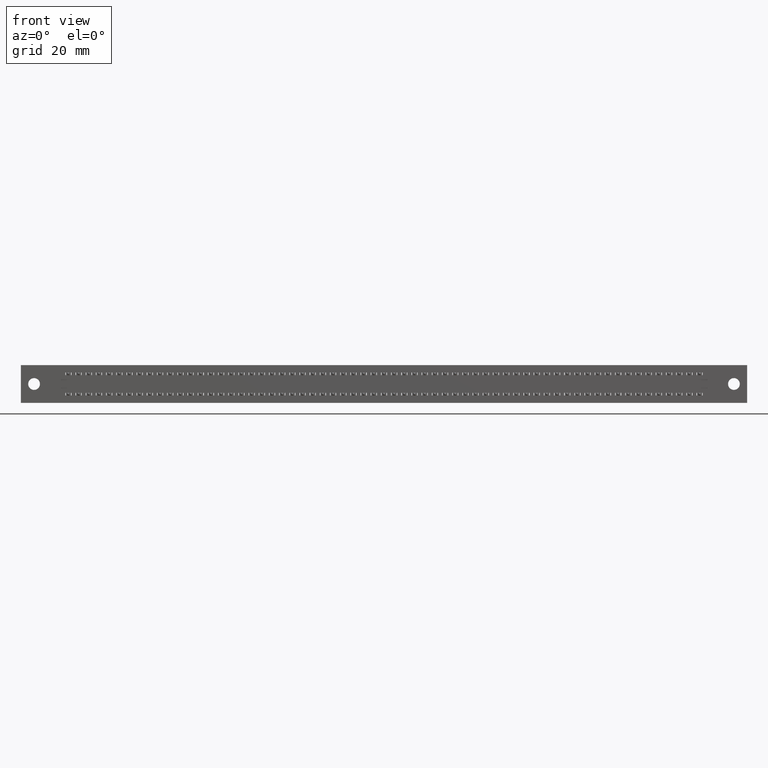
[diagram: clean part render]
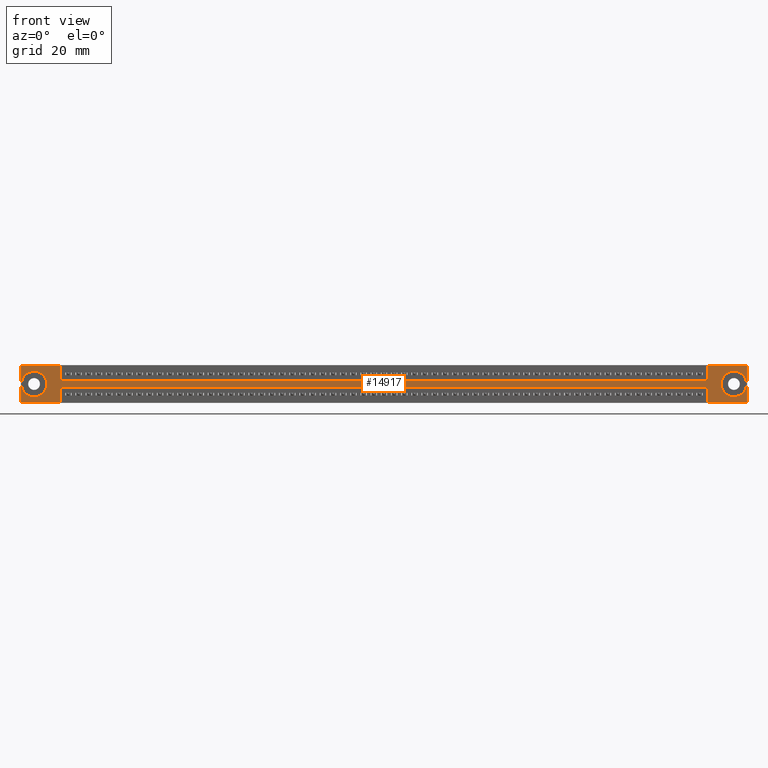
[diagram: same view with one face highlighted and labeled with its STEP entity id]
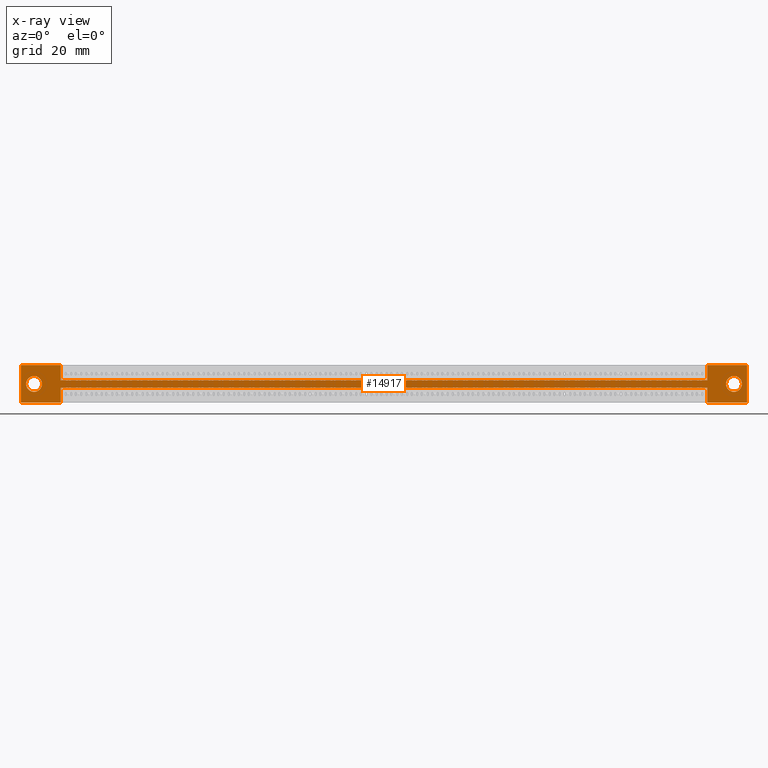
[diagram: x-ray of the same camera — body ghosted, the highlighted face saturated]
A machine part, front view. The second image highlights one B-rep face of the part: STEP entity #14917.
The next image is the same camera in x-ray: the body ghosted, the highlighted face saturated — about 0% of this face is hidden behind the body in this view.
In plain terms, the highlighted planar face has unit normal (0, -1, 0).
Its self-contained STEP definition (entity closure, byte-faithful):
#2244 = VECTOR ( 'NONE', #14319, 39.37007874015748100 ) ;
#2463 = DIRECTION ( 'NONE',  ( -1.000000000000000000, -0.0000000000000000000, -1.914399434943422000E-017 ) ) ;
#3635 = VECTOR ( 'NONE', #6135, 39.37007874015748100 ) ;
#3737 = DIRECTION ( 'NONE',  ( 0.0000000000000000000, 0.0000000000000000000, 1.000000000000000000 ) ) ;
#3769 = LINE ( 'NONE', #44026, #35302 ) ;
#3930 = FACE_BOUND ( 'NONE', #22617, .T. ) ;
#4119 = VECTOR ( 'NONE', #38405, 39.37007874015748100 ) ;
#4283 = VECTOR ( 'NONE', #37659, 39.37007874015748100 ) ;
#4478 = CARTESIAN_POINT ( 'NONE',  ( 7.004999999999999900, 0.0000000000000000000, -0.1850000000000000000 ) ) ;
#5934 = DIRECTION ( 'NONE',  ( 0.0000000000000000000, 1.000000000000000000, -0.0000000000000000000 ) ) ;
#5935 = VECTOR ( 'NONE', #36309, 39.37007874015748100 ) ;
#6135 = DIRECTION ( 'NONE',  ( -1.000000000000000000, -0.0000000000000000000, -1.914399434943422000E-017 ) ) ;
#6345 = CARTESIAN_POINT ( 'NONE',  ( 0.3924999999999996800, 0.0000000000000000000, -0.3700000000000000000 ) ) ;
#6457 = CARTESIAN_POINT ( 'NONE',  ( 6.742500000000000600, 0.0000000000000000000, -0.3700000000000000000 ) ) ;
#7029 = EDGE_LOOP ( 'NONE', ( #45430, #41431, #11964, #40698, #39459, #11622, #12070, #23414, #9784, #25214, #37932, #8560 ) ) ;
#7317 = VECTOR ( 'NONE', #29481, 39.37007874015748100 ) ;
#7786 = DIRECTION ( 'NONE',  ( 0.0000000000000000000, -1.000000000000000000, 0.0000000000000000000 ) ) ;
#8100 = EDGE_CURVE ( 'NONE', #22500, #34528, #23407, .T. ) ;
#8204 = CARTESIAN_POINT ( 'NONE',  ( 6.742500000000000600, 0.0000000000000000000, -0.2200000000000000000 ) ) ;
#8560 = ORIENTED_EDGE ( 'NONE', *, *, #17118, .F. ) ;
#8579 = CIRCLE ( 'NONE', #28438, 0.07800000000000002800 ) ;
#8622 = VECTOR ( 'NONE', #29839, 39.37007874015748100 ) ;
#8904 = AXIS2_PLACEMENT_3D ( 'NONE', #40874, #7786, #26154 ) ;
#9146 = DIRECTION ( 'NONE',  ( 0.0000000000000000000, 0.0000000000000000000, -1.000000000000000000 ) ) ;
#9422 = CARTESIAN_POINT ( 'NONE',  ( 0.0000000000000000000, 0.0000000000000000000, 0.0000000000000000000 ) ) ;
#9644 = DIRECTION ( 'NONE',  ( 0.0000000000000000000, 0.0000000000000000000, -1.000000000000000000 ) ) ;
#9784 = ORIENTED_EDGE ( 'NONE', *, *, #36054, .F. ) ;
#10196 = VECTOR ( 'NONE', #19902, 39.37007874015748100 ) ;
#10742 = LINE ( 'NONE', #25807, #7317 ) ;
#10849 = VERTEX_POINT ( 'NONE', #33978 ) ;
#10946 = EDGE_CURVE ( 'NONE', #41189, #11360, #28234, .T. ) ;
#10986 = EDGE_LOOP ( 'NONE', ( #30330, #25840 ) ) ;
#11260 = VERTEX_POINT ( 'NONE', #8204 ) ;
#11264 = CARTESIAN_POINT ( 'NONE',  ( 0.1299999999999994200, 0.0000000000000000000, -0.1069999999999999600 ) ) ;
#11360 = VERTEX_POINT ( 'NONE', #34725 ) ;
#11430 = CARTESIAN_POINT ( 'NONE',  ( 0.1299999999999994200, 0.0000000000000000000, -0.1850000000000000800 ) ) ;
#11452 = PLANE ( 'NONE',  #8904 ) ;
#11622 = ORIENTED_EDGE ( 'NONE', *, *, #19392, .F. ) ;
#11964 = ORIENTED_EDGE ( 'NONE', *, *, #13228, .F. ) ;
#11988 = AXIS2_PLACEMENT_3D ( 'NONE', #11430, #18448, #3737 ) ;
#12070 = ORIENTED_EDGE ( 'NONE', *, *, #36787, .F. ) ;
#12912 = EDGE_CURVE ( 'NONE', #10849, #44563, #37233, .T. ) ;
#13228 = EDGE_CURVE ( 'NONE', #31046, #11260, #39463, .T. ) ;
#13388 = CIRCLE ( 'NONE', #24889, 0.07800000000000011100 ) ;
#13883 = EDGE_CURVE ( 'NONE', #11360, #41189, #8579, .T. ) ;
#13921 = CARTESIAN_POINT ( 'NONE',  ( 0.3924999999999996800, 0.0000000000000000000, 0.0000000000000000000 ) ) ;
#14319 = DIRECTION ( 'NONE',  ( 1.000000000000000000, 0.0000000000000000000, 0.0000000000000000000 ) ) ;
#14917 = ADVANCED_FACE ( 'NONE', ( #45684, #3930, #39440 ), #11452, .T. ) ;
#15575 = EDGE_CURVE ( 'NONE', #11260, #32003, #10742, .T. ) ;
#15699 = CARTESIAN_POINT ( 'NONE',  ( 0.3924999999999996800, 0.0000000000000000000, 0.0000000000000000000 ) ) ;
#15834 = DIRECTION ( 'NONE',  ( 0.0000000000000000000, 1.000000000000000000, -0.0000000000000000000 ) ) ;
#16533 = LINE ( 'NONE', #28882, #28033 ) ;
#17118 = EDGE_CURVE ( 'NONE', #40758, #33858, #39225, .T. ) ;
#17335 = EDGE_CURVE ( 'NONE', #20064, #24234, #13388, .T. ) ;
#18128 = DIRECTION ( 'NONE',  ( 0.0000000000000000000, 1.000000000000000000, 0.0000000000000000000 ) ) ;
#18207 = ORIENTED_EDGE ( 'NONE', *, *, #29146, .T. ) ;
#18448 = DIRECTION ( 'NONE',  ( 0.0000000000000000000, 1.000000000000000000, 0.0000000000000000000 ) ) ;
#18453 = VERTEX_POINT ( 'NONE', #28992 ) ;
#19392 = EDGE_CURVE ( 'NONE', #39282, #18453, #21320, .T. ) ;
#19746 = CARTESIAN_POINT ( 'NONE',  ( 7.004999999999999900, 0.0000000000000000000, -0.1069999999999999800 ) ) ;
#19902 = DIRECTION ( 'NONE',  ( 1.000000000000000000, 0.0000000000000000000, 0.0000000000000000000 ) ) ;
#20064 = VERTEX_POINT ( 'NONE', #20120 ) ;
#20120 = CARTESIAN_POINT ( 'NONE',  ( 0.1299999999999994500, 0.0000000000000000000, -0.2630000000000001800 ) ) ;
#21062 = CARTESIAN_POINT ( 'NONE',  ( 0.0000000000000000000, 0.0000000000000000000, -0.3700000000000001600 ) ) ;
#21320 = LINE ( 'NONE', #9422, #4119 ) ;
#21853 = DIRECTION ( 'NONE',  ( 0.0000000000000000000, 0.0000000000000000000, 1.000000000000000000 ) ) ;
#21933 = ORIENTED_EDGE ( 'NONE', *, *, #17335, .T. ) ;
#22269 = EDGE_CURVE ( 'NONE', #32003, #40758, #36377, .T. ) ;
#22319 = DIRECTION ( 'NONE',  ( 0.0000000000000000000, 0.0000000000000000000, -1.000000000000000000 ) ) ;
#22344 = CARTESIAN_POINT ( 'NONE',  ( 6.742500000000000600, 0.0000000000000000000, 0.0000000000000000000 ) ) ;
#22500 = VERTEX_POINT ( 'NONE', #30446 ) ;
#22617 = EDGE_LOOP ( 'NONE', ( #18207, #21933 ) ) ;
#23291 = CARTESIAN_POINT ( 'NONE',  ( 6.742500000000000600, 0.0000000000000000000, -0.3700000000000000000 ) ) ;
#23407 = LINE ( 'NONE', #45770, #10196 ) ;
#23414 = ORIENTED_EDGE ( 'NONE', *, *, #12912, .F. ) ;
#24234 = VERTEX_POINT ( 'NONE', #11264 ) ;
#24889 = AXIS2_PLACEMENT_3D ( 'NONE', #40063, #18128, #21853 ) ;
#25214 = ORIENTED_EDGE ( 'NONE', *, *, #8100, .F. ) ;
#25807 = CARTESIAN_POINT ( 'NONE',  ( 0.3924999999999996800, 0.0000000000000000000, -0.2200000000000000000 ) ) ;
#25840 = ORIENTED_EDGE ( 'NONE', *, *, #13883, .T. ) ;
#26154 = DIRECTION ( 'NONE',  ( 0.0000000000000000000, -0.0000000000000000000, -1.000000000000000000 ) ) ;
#28033 = VECTOR ( 'NONE', #32564, 39.37007874015748100 ) ;
#28234 = CIRCLE ( 'NONE', #43069, 0.07800000000000002800 ) ;
#28251 = CIRCLE ( 'NONE', #11988, 0.07800000000000011100 ) ;
#28438 = AXIS2_PLACEMENT_3D ( 'NONE', #4478, #15834, #33940 ) ;
#28882 = CARTESIAN_POINT ( 'NONE',  ( 0.0000000000000000000, 0.0000000000000000000, 0.0000000000000000000 ) ) ;
#28906 = VECTOR ( 'NONE', #2463, 39.37007874015748100 ) ;
#28992 = CARTESIAN_POINT ( 'NONE',  ( 7.135000000000000700, 0.0000000000000000000, 0.0000000000000000000 ) ) ;
#29017 = EDGE_CURVE ( 'NONE', #43315, #31046, #43705, .T. ) ;
#29146 = EDGE_CURVE ( 'NONE', #24234, #20064, #28251, .T. ) ;
#29481 = DIRECTION ( 'NONE',  ( -1.000000000000000000, -0.0000000000000000000, -0.0000000000000000000 ) ) ;
#29839 = DIRECTION ( 'NONE',  ( 0.0000000000000000000, 0.0000000000000000000, 1.000000000000000000 ) ) ;
#30330 = ORIENTED_EDGE ( 'NONE', *, *, #10946, .T. ) ;
#30446 = CARTESIAN_POINT ( 'NONE',  ( 0.0000000000000000000, 0.0000000000000000000, 0.0000000000000000000 ) ) ;
#31046 = VERTEX_POINT ( 'NONE', #6457 ) ;
#31897 = CARTESIAN_POINT ( 'NONE',  ( 0.0000000000000000000, 0.0000000000000000000, -0.3700000000000001600 ) ) ;
#32003 = VERTEX_POINT ( 'NONE', #37604 ) ;
#32244 = CARTESIAN_POINT ( 'NONE',  ( 0.3924999999999996800, 0.0000000000000000000, -0.1499999999999999900 ) ) ;
#32283 = CARTESIAN_POINT ( 'NONE',  ( 6.742500000000000600, 0.0000000000000000000, 0.0000000000000000000 ) ) ;
#32564 = DIRECTION ( 'NONE',  ( -0.0000000000000000000, -0.0000000000000000000, 1.000000000000000000 ) ) ;
#33858 = VERTEX_POINT ( 'NONE', #37443 ) ;
#33940 = DIRECTION ( 'NONE',  ( 0.0000000000000000000, 0.0000000000000000000, -1.000000000000000000 ) ) ;
#33978 = CARTESIAN_POINT ( 'NONE',  ( 0.3924999999999996800, 0.0000000000000000000, -0.1499999999999999900 ) ) ;
#34528 = VERTEX_POINT ( 'NONE', #15699 ) ;
#34725 = CARTESIAN_POINT ( 'NONE',  ( 7.004999999999999900, 0.0000000000000000000, -0.2630000000000000100 ) ) ;
#35302 = VECTOR ( 'NONE', #22319, 39.37007874015748100 ) ;
#35689 = EDGE_CURVE ( 'NONE', #18453, #43315, #3769, .T. ) ;
#35712 = LINE ( 'NONE', #32283, #5935 ) ;
#35802 = LINE ( 'NONE', #13921, #43194 ) ;
#35892 = CARTESIAN_POINT ( 'NONE',  ( 7.135000000000000700, 0.0000000000000000000, -0.3700000000000000000 ) ) ;
#36054 = EDGE_CURVE ( 'NONE', #34528, #10849, #35802, .T. ) ;
#36309 = DIRECTION ( 'NONE',  ( -0.0000000000000000000, -0.0000000000000000000, 1.000000000000000000 ) ) ;
#36377 = LINE ( 'NONE', #37350, #4283 ) ;
#36787 = EDGE_CURVE ( 'NONE', #44563, #39282, #35712, .T. ) ;
#37233 = LINE ( 'NONE', #32244, #2244 ) ;
#37350 = CARTESIAN_POINT ( 'NONE',  ( 0.3924999999999996800, 0.0000000000000000000, -0.3700000000000000000 ) ) ;
#37443 = CARTESIAN_POINT ( 'NONE',  ( 0.0000000000000000000, 0.0000000000000000000, -0.3700000000000001600 ) ) ;
#37604 = CARTESIAN_POINT ( 'NONE',  ( 0.3924999999999996800, 0.0000000000000000000, -0.2200000000000000000 ) ) ;
#37659 = DIRECTION ( 'NONE',  ( -0.0000000000000000000, -0.0000000000000000000, -1.000000000000000000 ) ) ;
#37668 = CARTESIAN_POINT ( 'NONE',  ( 6.742500000000000600, 0.0000000000000000000, -0.1499999999999999900 ) ) ;
#37932 = ORIENTED_EDGE ( 'NONE', *, *, #40865, .F. ) ;
#38405 = DIRECTION ( 'NONE',  ( 1.000000000000000000, 0.0000000000000000000, 0.0000000000000000000 ) ) ;
#39225 = LINE ( 'NONE', #21062, #28906 ) ;
#39282 = VERTEX_POINT ( 'NONE', #22344 ) ;
#39440 = FACE_OUTER_BOUND ( 'NONE', #7029, .T. ) ;
#39459 = ORIENTED_EDGE ( 'NONE', *, *, #35689, .F. ) ;
#39463 = LINE ( 'NONE', #23291, #8622 ) ;
#40063 = CARTESIAN_POINT ( 'NONE',  ( 0.1299999999999994200, 0.0000000000000000000, -0.1850000000000000800 ) ) ;
#40698 = ORIENTED_EDGE ( 'NONE', *, *, #29017, .F. ) ;
#40758 = VERTEX_POINT ( 'NONE', #6345 ) ;
#40865 = EDGE_CURVE ( 'NONE', #33858, #22500, #16533, .T. ) ;
#40874 = CARTESIAN_POINT ( 'NONE',  ( 0.0000000000000000000, 0.0000000000000000000, -0.3700000000000001600 ) ) ;
#41189 = VERTEX_POINT ( 'NONE', #19746 ) ;
#41431 = ORIENTED_EDGE ( 'NONE', *, *, #15575, .F. ) ;
#42255 = CARTESIAN_POINT ( 'NONE',  ( 7.004999999999999900, 0.0000000000000000000, -0.1850000000000000000 ) ) ;
#43069 = AXIS2_PLACEMENT_3D ( 'NONE', #42255, #5934, #9146 ) ;
#43194 = VECTOR ( 'NONE', #9644, 39.37007874015748100 ) ;
#43315 = VERTEX_POINT ( 'NONE', #35892 ) ;
#43705 = LINE ( 'NONE', #31897, #3635 ) ;
#44026 = CARTESIAN_POINT ( 'NONE',  ( 7.135000000000000700, 0.0000000000000000000, 0.0000000000000000000 ) ) ;
#44563 = VERTEX_POINT ( 'NONE', #37668 ) ;
#45430 = ORIENTED_EDGE ( 'NONE', *, *, #22269, .F. ) ;
#45684 = FACE_BOUND ( 'NONE', #10986, .T. ) ;
#45770 = CARTESIAN_POINT ( 'NONE',  ( 0.0000000000000000000, 0.0000000000000000000, 0.0000000000000000000 ) ) ;